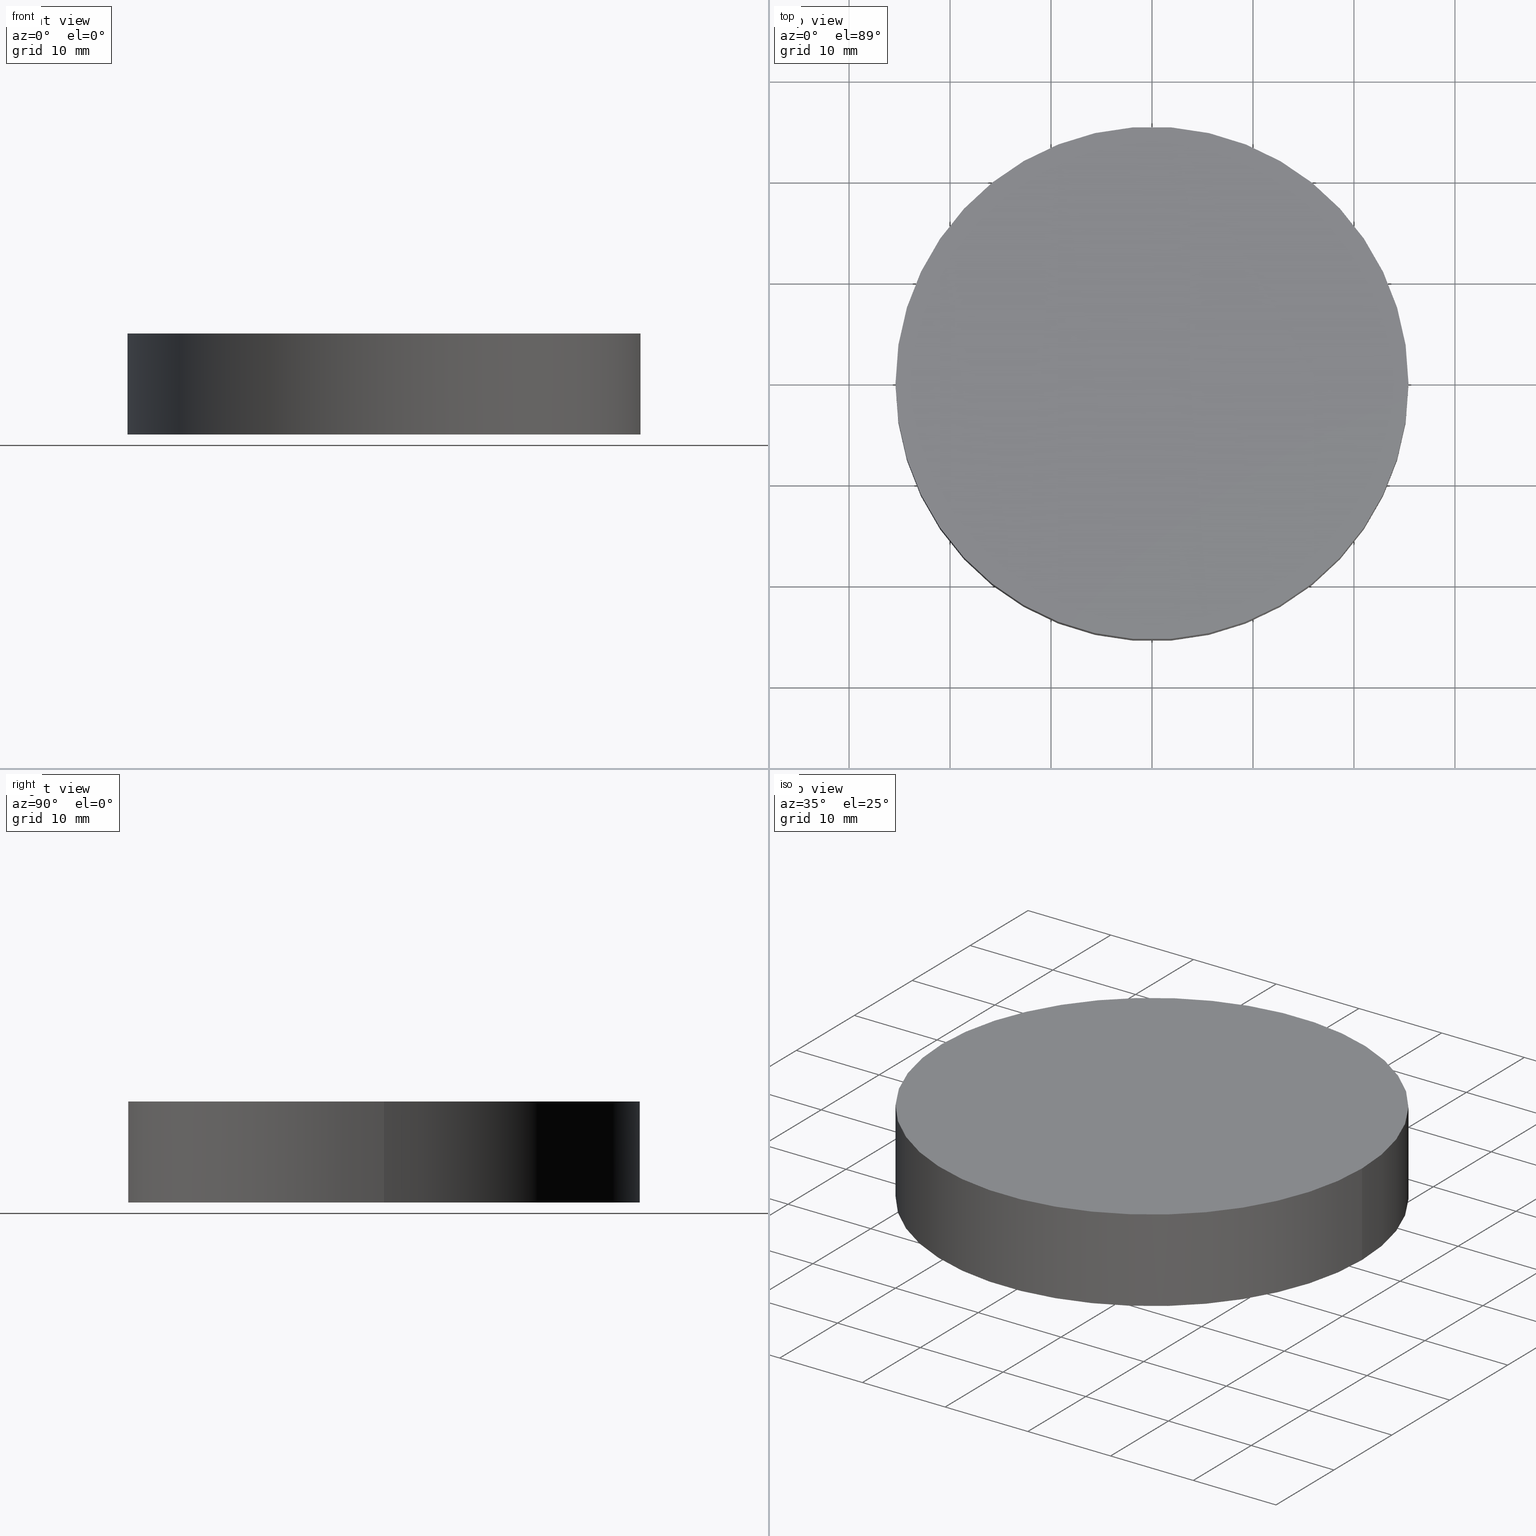
[diagram: canonical four-view strip — front | top / right | iso, engineering-drawing reading convention]
A machine part, canonical four-view strip (front | top / right | iso — engineering-drawing reading convention). The complete STEP part file that produces these views, byte-faithful:
ISO-10303-21;
HEADER;
FILE_DESCRIPTION (( 'STEP AP214' ),
    '1' );
FILE_NAME ('185010.STEP',
    '2019-07-12T01:56:48',
    ( 'user' ),
    ( '΢���й�' ),
    'SwSTEP 2.0',
    'SolidWorks 2016',
    '' );
FILE_SCHEMA (( 'AUTOMOTIVE_DESIGN' ));
ENDSEC;

DATA;
#1 =( NAMED_UNIT ( * ) PLANE_ANGLE_UNIT ( ) SI_UNIT ( $, .RADIAN. ) );
#2 = APPLICATION_CONTEXT ( 'automotive_design' ) ;
#3 = FACE_OUTER_BOUND ( 'NONE', #39, .T. ) ;
#4 = ADVANCED_FACE ( 'NONE', ( #64 ), #25, .T. ) ;
#5 = ORIENTED_EDGE ( 'NONE', *, *, #96, .T. ) ;
#6 = ORIENTED_EDGE ( 'NONE', *, *, #14, .F. ) ;
#7 = FILL_AREA_STYLE_COLOUR ( '', #83 ) ;
#8 = PRODUCT_DEFINITION_SHAPE ( 'NONE', 'NONE',  #103 ) ;
#9 = DIRECTION ( 'NONE',  ( 1.000000000000000000, 0.0000000000000000000, 0.0000000000000000000 ) ) ;
#10 = ORIENTED_EDGE ( 'NONE', *, *, #33, .T. ) ;
#11 = CARTESIAN_POINT ( 'NONE',  ( 0.0000000000000000000, 0.0000000000000000000, 10.00000000000000000 ) ) ;
#12 =( NAMED_UNIT ( * ) SI_UNIT ( $, .STERADIAN. ) SOLID_ANGLE_UNIT ( ) );
#13 =( NAMED_UNIT ( * ) PLANE_ANGLE_UNIT ( ) SI_UNIT ( $, .RADIAN. ) );
#14 = EDGE_CURVE ( 'NONE', #124, #78, #17, .T. ) ;
#15 = CIRCLE ( 'NONE', #84, 25.39999999999999900 ) ;
#16 = ORIENTED_EDGE ( 'NONE', *, *, #14, .T. ) ;
#17 = LINE ( 'NONE', #104, #76 ) ;
#18 = PRESENTATION_STYLE_ASSIGNMENT (( #27 ) ) ;
#19 = ORIENTED_EDGE ( 'NONE', *, *, #22, .T. ) ;
#20 = PRODUCT_CONTEXT ( 'NONE', #2, 'mechanical' ) ;
#21 =( GEOMETRIC_REPRESENTATION_CONTEXT ( 3 ) GLOBAL_UNCERTAINTY_ASSIGNED_CONTEXT ( ( #80 ) ) GLOBAL_UNIT_ASSIGNED_CONTEXT ( ( #100, #81, #38 ) ) REPRESENTATION_CONTEXT ( 'NONE', 'WORKASPACE' ) );
#22 = EDGE_CURVE ( 'NONE', #136, #105, #23, .T. ) ;
#23 = LINE ( 'NONE', #51, #82 ) ;
#24 = CARTESIAN_POINT ( 'NONE',  ( 0.0000000000000000000, 0.0000000000000000000, 10.00000000000000000 ) ) ;
#25 = PLANE ( 'NONE',  #116 ) ;
#26 = ADVANCED_BREP_SHAPE_REPRESENTATION ( '185010', ( #55, #93 ), #21 ) ;
#27 = SURFACE_STYLE_USAGE ( .BOTH. , #48 ) ;
#28 = AXIS2_PLACEMENT_3D ( 'NONE', #43, #120, #130 ) ;
#29 = CARTESIAN_POINT ( 'NONE',  ( 25.39999999999999900, 3.110602869834276900E-015, 0.0000000000000000000 ) ) ;
#30 = PRODUCT ( '185010', '185010', '', ( #20 ) ) ;
#31 = AXIS2_PLACEMENT_3D ( 'NONE', #98, #91, #123 ) ;
#32 = CYLINDRICAL_SURFACE ( 'NONE', #95, 25.39999999999999900 ) ;
#33 = EDGE_CURVE ( 'NONE', #136, #124, #97, .T. ) ;
#34 = PRODUCT_DEFINITION_CONTEXT ( 'detailed design', #128, 'design' ) ;
#35 = CIRCLE ( 'NONE', #89, 25.39999999999999900 ) ;
#36 = ADVANCED_FACE ( 'NONE', ( #45 ), #73, .F. ) ;
#37 = DIRECTION ( 'NONE',  ( -1.000000000000000000, 0.0000000000000000000, 0.0000000000000000000 ) ) ;
#38 =( NAMED_UNIT ( * ) SI_UNIT ( $, .STERADIAN. ) SOLID_ANGLE_UNIT ( ) );
#39 = EDGE_LOOP ( 'NONE', ( #122, #94, #16, #74 ) ) ;
#40 = FILL_AREA_STYLE_COLOUR ( '', #65 ) ;
#41 = AXIS2_PLACEMENT_3D ( 'NONE', #77, #102, #79 ) ;
#42 = CARTESIAN_POINT ( 'NONE',  ( -25.39999999999999900, 0.0000000000000000000, 10.00000000000000000 ) ) ;
#43 = CARTESIAN_POINT ( 'NONE',  ( 0.0000000000000000000, 0.0000000000000000000, 0.0000000000000000000 ) ) ;
#44 = ORIENTED_EDGE ( 'NONE', *, *, #96, .F. ) ;
#45 = FACE_OUTER_BOUND ( 'NONE', #50, .T. ) ;
#46 = FACE_OUTER_BOUND ( 'NONE', #92, .T. ) ;
#47 = CARTESIAN_POINT ( 'NONE',  ( 25.39999999999999900, 3.110602869834276900E-015, 10.00000000000000000 ) ) ;
#48 = SURFACE_SIDE_STYLE ('',( #135 ) ) ;
#49 = APPLICATION_PROTOCOL_DEFINITION ( 'draft international standard', 'automotive_design', 1998, #2 ) ;
#50 = EDGE_LOOP ( 'NONE', ( #67, #44 ) ) ;
#51 = CARTESIAN_POINT ( 'NONE',  ( 25.39999999999999900, 3.110602869834276900E-015, 10.00000000000000000 ) ) ;
#52 =( LENGTH_UNIT ( ) NAMED_UNIT ( * ) SI_UNIT ( .MILLI., .METRE. ) );
#53 = CARTESIAN_POINT ( 'NONE',  ( 0.0000000000000000000, 0.0000000000000000000, 0.0000000000000000000 ) ) ;
#54 =( GEOMETRIC_REPRESENTATION_CONTEXT ( 3 ) GLOBAL_UNCERTAINTY_ASSIGNED_CONTEXT ( ( #87 ) ) GLOBAL_UNIT_ASSIGNED_CONTEXT ( ( #52, #13, #12 ) ) REPRESENTATION_CONTEXT ( 'NONE', 'WORKASPACE' ) );
#55 = MANIFOLD_SOLID_BREP ( '͹̨-����1', #107 ) ;
#56 = ADVANCED_FACE ( 'NONE', ( #46 ), #32, .T. ) ;
#57 = STYLED_ITEM ( 'NONE', ( #18 ), #26 ) ;
#58 =( NAMED_UNIT ( * ) SI_UNIT ( $, .STERADIAN. ) SOLID_ANGLE_UNIT ( ) );
#59 = DIRECTION ( 'NONE',  ( 1.000000000000000000, 0.0000000000000000000, 0.0000000000000000000 ) ) ;
#60 = DIRECTION ( 'NONE',  ( 0.0000000000000000000, 0.0000000000000000000, 1.000000000000000000 ) ) ;
#61 = DIRECTION ( 'NONE',  ( -0.0000000000000000000, -0.0000000000000000000, -1.000000000000000000 ) ) ;
#62 = PRESENTATION_LAYER_ASSIGNMENT (  '', '', ( #57 ) ) ;
#63 = CIRCLE ( 'NONE', #31, 25.39999999999999900 ) ;
#64 = FACE_OUTER_BOUND ( 'NONE', #118, .T. ) ;
#65 = COLOUR_RGB ( '',1.000000000000000000, 1.000000000000000000, 1.000000000000000000 ) ;
#66 = UNCERTAINTY_MEASURE_WITH_UNIT (LENGTH_MEASURE( 1.000000000000000100E-005 ), #131, 'distance_accuracy_value', 'NONE');
#67 = ORIENTED_EDGE ( 'NONE', *, *, #139, .F. ) ;
#68 = MECHANICAL_DESIGN_GEOMETRIC_PRESENTATION_REPRESENTATION (  '', ( #57 ), #75 ) ;
#69 = DIRECTION ( 'NONE',  ( 1.000000000000000000, 0.0000000000000000000, -0.0000000000000000000 ) ) ;
#70 = CARTESIAN_POINT ( 'NONE',  ( 0.0000000000000000000, 0.0000000000000000000, 10.00000000000000000 ) ) ;
#71 = ORIENTED_EDGE ( 'NONE', *, *, #106, .T. ) ;
#72 = DIRECTION ( 'NONE',  ( -0.0000000000000000000, -0.0000000000000000000, -1.000000000000000000 ) ) ;
#73 = PLANE ( 'NONE',  #28 ) ;
#74 = ORIENTED_EDGE ( 'NONE', *, *, #139, .T. ) ;
#75 =( GEOMETRIC_REPRESENTATION_CONTEXT ( 3 ) GLOBAL_UNCERTAINTY_ASSIGNED_CONTEXT ( ( #66 ) ) GLOBAL_UNIT_ASSIGNED_CONTEXT ( ( #131, #1, #58 ) ) REPRESENTATION_CONTEXT ( 'NONE', 'WORKASPACE' ) );
#76 = VECTOR ( 'NONE', #115, 1000.000000000000000 ) ;
#77 = CARTESIAN_POINT ( 'NONE',  ( 0.0000000000000000000, 0.0000000000000000000, 10.00000000000000000 ) ) ;
#78 = VERTEX_POINT ( 'NONE', #112 ) ;
#79 = DIRECTION ( 'NONE',  ( -1.000000000000000000, 0.0000000000000000000, 0.0000000000000000000 ) ) ;
#80 = UNCERTAINTY_MEASURE_WITH_UNIT (LENGTH_MEASURE( 1.000000000000000100E-005 ), #100, 'distance_accuracy_value', 'NONE');
#81 =( NAMED_UNIT ( * ) PLANE_ANGLE_UNIT ( ) SI_UNIT ( $, .RADIAN. ) );
#82 = VECTOR ( 'NONE', #72, 1000.000000000000000 ) ;
#83 = COLOUR_RGB ( '',1.000000000000000000, 1.000000000000000000, 1.000000000000000000 ) ;
#84 = AXIS2_PLACEMENT_3D ( 'NONE', #53, #86, #9 ) ;
#85 = CYLINDRICAL_SURFACE ( 'NONE', #41, 25.39999999999999900 ) ;
#86 = DIRECTION ( 'NONE',  ( 0.0000000000000000000, 0.0000000000000000000, 1.000000000000000000 ) ) ;
#87 = UNCERTAINTY_MEASURE_WITH_UNIT (LENGTH_MEASURE( 1.000000000000000100E-005 ), #52, 'distance_accuracy_value', 'NONE');
#88 = SHAPE_DEFINITION_REPRESENTATION ( #8, #26 ) ;
#89 = AXIS2_PLACEMENT_3D ( 'NONE', #121, #134, #59 ) ;
#90 = ORIENTED_EDGE ( 'NONE', *, *, #33, .F. ) ;
#91 = DIRECTION ( 'NONE',  ( 0.0000000000000000000, 0.0000000000000000000, 1.000000000000000000 ) ) ;
#92 = EDGE_LOOP ( 'NONE', ( #90, #19, #5, #6 ) ) ;
#93 = AXIS2_PLACEMENT_3D ( 'NONE', #110, #108, #140 ) ;
#94 = ORIENTED_EDGE ( 'NONE', *, *, #106, .F. ) ;
#95 = AXIS2_PLACEMENT_3D ( 'NONE', #24, #61, #37 ) ;
#96 = EDGE_CURVE ( 'NONE', #105, #78, #15, .T. ) ;
#97 = CIRCLE ( 'NONE', #126, 25.39999999999999900 ) ;
#98 = CARTESIAN_POINT ( 'NONE',  ( 0.0000000000000000000, 0.0000000000000000000, 0.0000000000000000000 ) ) ;
#99 = SURFACE_STYLE_USAGE ( .BOTH. , #101 ) ;
#100 =( LENGTH_UNIT ( ) NAMED_UNIT ( * ) SI_UNIT ( .MILLI., .METRE. ) );
#101 = SURFACE_SIDE_STYLE ('',( #129 ) ) ;
#102 = DIRECTION ( 'NONE',  ( -0.0000000000000000000, -0.0000000000000000000, -1.000000000000000000 ) ) ;
#103 = PRODUCT_DEFINITION ( 'δ֪', '', #109, #34 ) ;
#104 = CARTESIAN_POINT ( 'NONE',  ( -25.39999999999999900, 0.0000000000000000000, 10.00000000000000000 ) ) ;
#105 = VERTEX_POINT ( 'NONE', #29 ) ;
#106 = EDGE_CURVE ( 'NONE', #124, #136, #35, .T. ) ;
#107 = CLOSED_SHELL ( 'NONE', ( #56, #125, #4, #36 ) ) ;
#108 = DIRECTION ( 'NONE',  ( 0.0000000000000000000, 0.0000000000000000000, 1.000000000000000000 ) ) ;
#109 = PRODUCT_DEFINITION_FORMATION_WITH_SPECIFIED_SOURCE ( '�κ�', '', #30, .NOT_KNOWN. ) ;
#110 = CARTESIAN_POINT ( 'NONE',  ( 0.0000000000000000000, 0.0000000000000000000, 0.0000000000000000000 ) ) ;
#111 = PRESENTATION_LAYER_ASSIGNMENT (  '', '', ( #127 ) ) ;
#112 = CARTESIAN_POINT ( 'NONE',  ( -25.39999999999999900, 0.0000000000000000000, 0.0000000000000000000 ) ) ;
#113 = DIRECTION ( 'NONE',  ( 0.0000000000000000000, 0.0000000000000000000, 1.000000000000000000 ) ) ;
#114 = DIRECTION ( 'NONE',  ( 1.000000000000000000, 0.0000000000000000000, 0.0000000000000000000 ) ) ;
#115 = DIRECTION ( 'NONE',  ( -0.0000000000000000000, -0.0000000000000000000, -1.000000000000000000 ) ) ;
#116 = AXIS2_PLACEMENT_3D ( 'NONE', #70, #60, #69 ) ;
#117 = PRODUCT_RELATED_PRODUCT_CATEGORY ( 'part', '', ( #30 ) ) ;
#118 = EDGE_LOOP ( 'NONE', ( #71, #10 ) ) ;
#119 = PRESENTATION_STYLE_ASSIGNMENT (( #99 ) ) ;
#120 = DIRECTION ( 'NONE',  ( 0.0000000000000000000, 0.0000000000000000000, 1.000000000000000000 ) ) ;
#121 = CARTESIAN_POINT ( 'NONE',  ( 0.0000000000000000000, 0.0000000000000000000, 10.00000000000000000 ) ) ;
#122 = ORIENTED_EDGE ( 'NONE', *, *, #22, .F. ) ;
#123 = DIRECTION ( 'NONE',  ( 1.000000000000000000, 0.0000000000000000000, 0.0000000000000000000 ) ) ;
#124 = VERTEX_POINT ( 'NONE', #42 ) ;
#125 = ADVANCED_FACE ( 'NONE', ( #3 ), #85, .T. ) ;
#126 = AXIS2_PLACEMENT_3D ( 'NONE', #11, #113, #114 ) ;
#127 = STYLED_ITEM ( 'NONE', ( #119 ), #55 ) ;
#128 = APPLICATION_CONTEXT ( 'automotive_design' ) ;
#129 = SURFACE_STYLE_FILL_AREA ( #133 ) ;
#130 = DIRECTION ( 'NONE',  ( 1.000000000000000000, 0.0000000000000000000, -0.0000000000000000000 ) ) ;
#131 =( LENGTH_UNIT ( ) NAMED_UNIT ( * ) SI_UNIT ( .MILLI., .METRE. ) );
#132 = FILL_AREA_STYLE ('',( #7 ) ) ;
#133 = FILL_AREA_STYLE ('',( #40 ) ) ;
#134 = DIRECTION ( 'NONE',  ( 0.0000000000000000000, 0.0000000000000000000, 1.000000000000000000 ) ) ;
#135 = SURFACE_STYLE_FILL_AREA ( #132 ) ;
#136 = VERTEX_POINT ( 'NONE', #47 ) ;
#137 = MECHANICAL_DESIGN_GEOMETRIC_PRESENTATION_REPRESENTATION (  '', ( #127 ), #54 ) ;
#138 = APPLICATION_PROTOCOL_DEFINITION ( 'draft international standard', 'automotive_design', 1998, #128 ) ;
#139 = EDGE_CURVE ( 'NONE', #78, #105, #63, .T. ) ;
#140 = DIRECTION ( 'NONE',  ( 1.000000000000000000, 0.0000000000000000000, 0.0000000000000000000 ) ) ;
ENDSEC;
END-ISO-10303-21;
